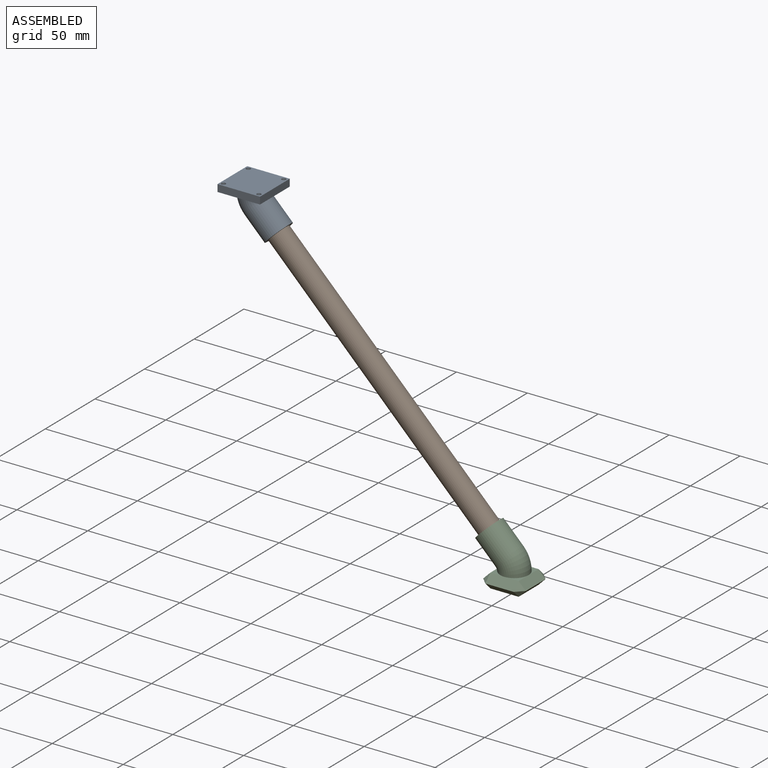
[diagram: assembled view]
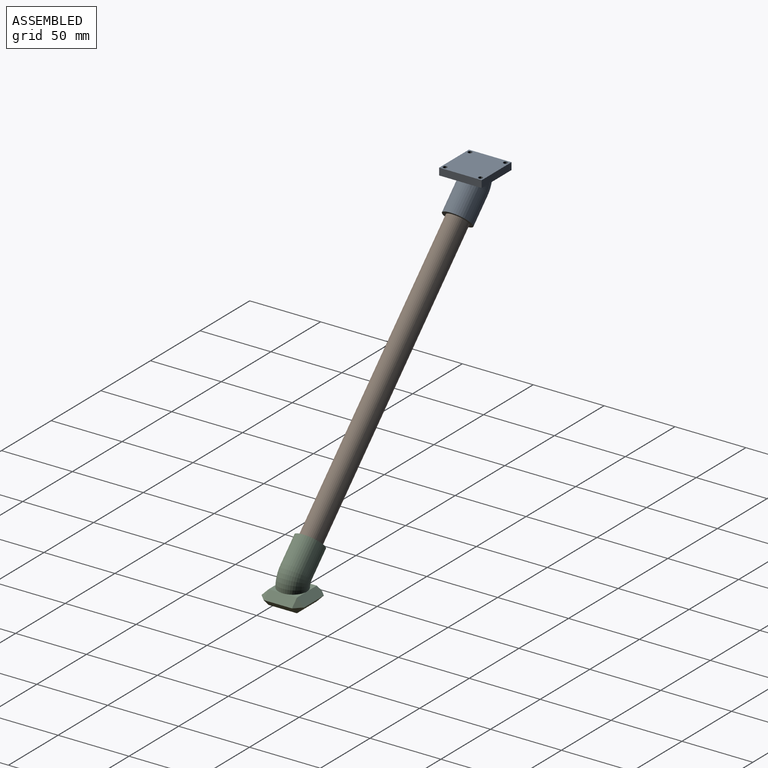
[diagram: assembled view, second angle]
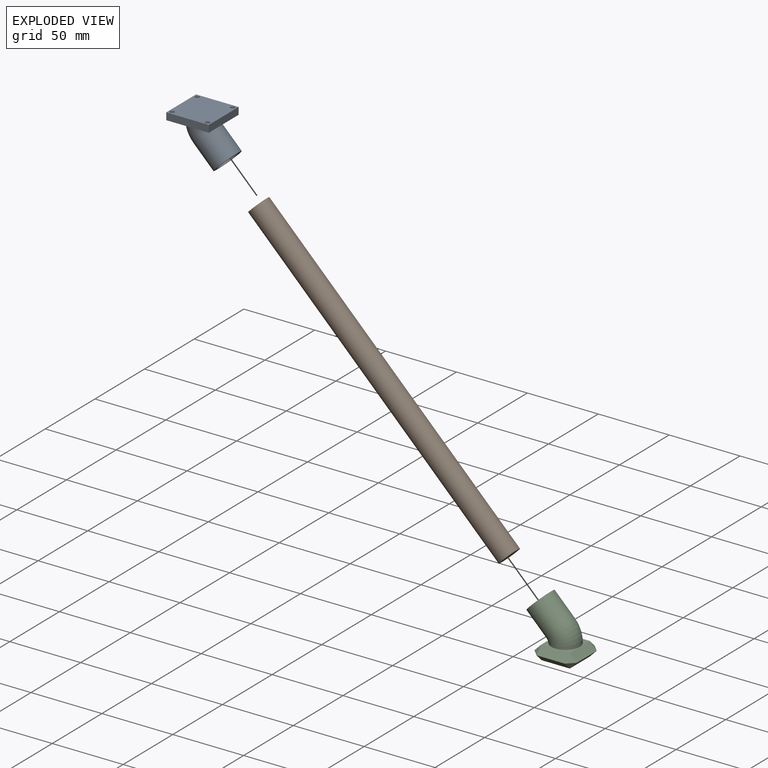
[diagram: exploded view]
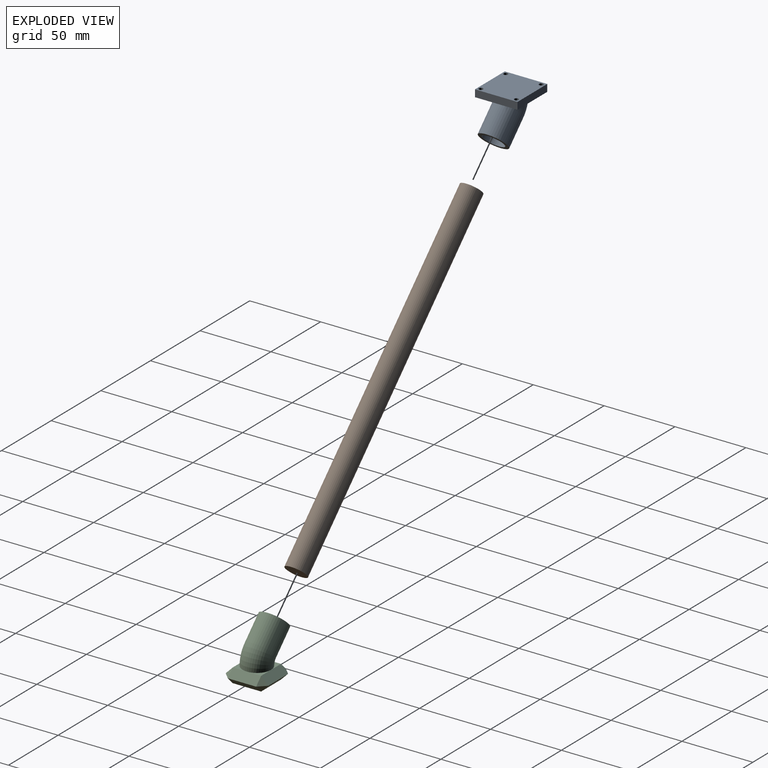
[diagram: exploded view, second angle]
ASSEMBLY  parts=3 mates=2
PART A: 16 faces, bbox 39.9x30x35.1 mm
  f0: plane 30x5mm, normal (1,0,0), area 150mm2, adj f1,f7,f8,f9
  f1: plane 30x5mm, normal (0,1,0), area 150mm2, adj f0,f2,f8,f9
  f2: plane 30x5mm, normal (-1,0,0), area 150mm2, adj f1,f7,f8,f9
  f3: cylinder r=1.5mm len=5mm, axis (0,0,1), area 47.1mm2, adj f8,f9
  f4: cylinder r=1.5mm len=5mm, axis (0,0,1), area 47.1mm2, adj f8,f9
  f5: cylinder r=1.5mm len=5mm, axis (0,0,1), area 47.1mm2, adj f8,f9
  f6: cylinder r=1.5mm len=5mm, axis (0,0,1), area 47.1mm2, adj f8,f9
  f7: plane 30x5mm, normal (0,-1,0), area 150mm2, adj f0,f2,f8,f9
  f8: plane 30x30mm, normal (0,0,-1), area 871.7mm2, adj f0,f1,f2,f3,f4,f5,f6,f7
  f9: plane 30x30mm, normal (0,0,1), area 557.6mm2, adj f0,f1,f2,f3,f4,f5,f6,f7
  f10: torus R=12.5mm, axis (0,1,0), area 616.9mm2, adj f9,f12
  f11: cylinder r=7.5mm len=24.75mm, axis (0.71,0,-0.71), area 942.5mm2, adj f13,f15
  f12: cylinder r=10mm len=28.28mm, axis (0.71,0,-0.71), area 1256.6mm2, adj f10,f13
  f13: plane 20x14.14mm, normal (-0.71,0,0.71), area 137.4mm2, adj f11,f12
  f14: plane 15x15mm, normal (0,0,1), area 176.7mm2, adj f15
  f15: torus R=12.5mm, axis (0,1,0), area 462.6mm2, adj f11,f14
PART B: 3 faces, bbox 187.4x15x187.4 mm
  f0: cylinder r=7.5mm len=187.38mm, axis (0.71,0,-0.71), area 11781mm2, adj f1,f2
  f1: plane 15x10.61mm, normal (-0.71,0,0.71), area 176.7mm2, adj f0
  f2: plane 15x10.61mm, normal (0.71,0,-0.71), area 176.7mm2, adj f0
PART C: 26 faces, bbox 39.7x30x39.7 mm
  f0: plane 10x10mm, normal (0,0,-1), area 21.5mm2, adj f3,f10,f15
  f1: plane 10x10mm, normal (0,0,-1), area 21.5mm2, adj f3,f15,f23
  f2: plane 10x10mm, normal (0,0,-1), area 21.5mm2, adj f3,f16,f23
  f3: torus R=12mm, axis (0,-1,0), area 592.2mm2, adj f0,f1,f2,f5,f9
  f4: cylinder r=7.5mm len=24.75mm, axis (-0.71,0,0.71), area 942.5mm2, adj f6,f7
  f5: cylinder r=10mm len=28.28mm, axis (-0.71,0,0.71), area 1256.6mm2, adj f3,f6
  f6: plane 20x14.14mm, normal (0.71,0,-0.71), area 137.4mm2, adj f4,f5
  f7: plane 15x10.61mm, normal (0.71,0,-0.71), area 176.7mm2, adj f4
  f8: plane 20x20mm, normal (0,0,1), area 400mm2, adj f13,f18,f21,f25
  f9: plane 10x10mm, normal (0,0,-1), area 21.5mm2, adj f3,f10,f16
  f10: plane 20x5mm, normal (0,0.71,-0.71), area 141.4mm2, adj f0,f9,f11,f12,f13
  f11: plane 5x5mm, normal (0.58,0.58,-0.58), area 21.7mm2, adj f10,f14,f15
  f12: plane 5x5mm, normal (-0.58,0.58,-0.58), area 21.7mm2, adj f10,f16,f17
  f13: plane 20x5mm, normal (0,0.71,0.71), area 141.4mm2, adj f8,f10,f14,f17
  f14: plane 5x5mm, normal (0.58,0.58,0.58), area 21.7mm2, adj f11,f13,f18
  f15: plane 20x5mm, normal (0.71,0,-0.71), area 141.4mm2, adj f0,f1,f11,f18,f19
  f16: plane 20x5mm, normal (-0.71,0,-0.71), area 141.4mm2, adj f2,f9,f12,f20,f21
  f17: plane 5x5mm, normal (-0.58,0.58,0.58), area 21.7mm2, adj f12,f13,f21
  f18: plane 20x5mm, normal (0.71,0,0.71), area 141.4mm2, adj f8,f14,f15,f22
  f19: plane 5x5mm, normal (0.58,-0.58,-0.58), area 21.7mm2, adj f15,f22,f23
  f20: plane 5x5mm, normal (-0.58,-0.58,-0.58), area 21.7mm2, adj f16,f23,f24
  f21: plane 20x5mm, normal (-0.71,0,0.71), area 141.4mm2, adj f8,f16,f17,f24
  f22: plane 5x5mm, normal (0.58,-0.58,0.58), area 21.7mm2, adj f18,f19,f25
  f23: plane 20x5mm, normal (0,-0.71,-0.71), area 141.4mm2, adj f1,f2,f19,f20,f25
  f24: plane 5x5mm, normal (-0.58,-0.58,0.58), area 21.7mm2, adj f20,f21,f25
  f25: plane 20x5mm, normal (0,-0.71,0.71), area 141.4mm2, adj f8,f22,f23,f24
PLACE A rot(axis=(0,1,0),180deg) t=(-288.24,-42.53,368.73)mm
PLACE B rot(axis=(0,1,0),180deg) t=(-288.24,-42.53,368.73)mm
PLACE C rot(axis=(0,1,0),180deg) t=(-288.24,-42.53,368.73)mm
MATE fastened C.f4 <-> B.f0  axis (-0.71,0,0.71) through (-107.8,-42.53,183.11)mm
MATE fastened A.f11 <-> B.f0  axis (-0.71,0,0.71) through (-284.58,-42.53,359.89)mm
